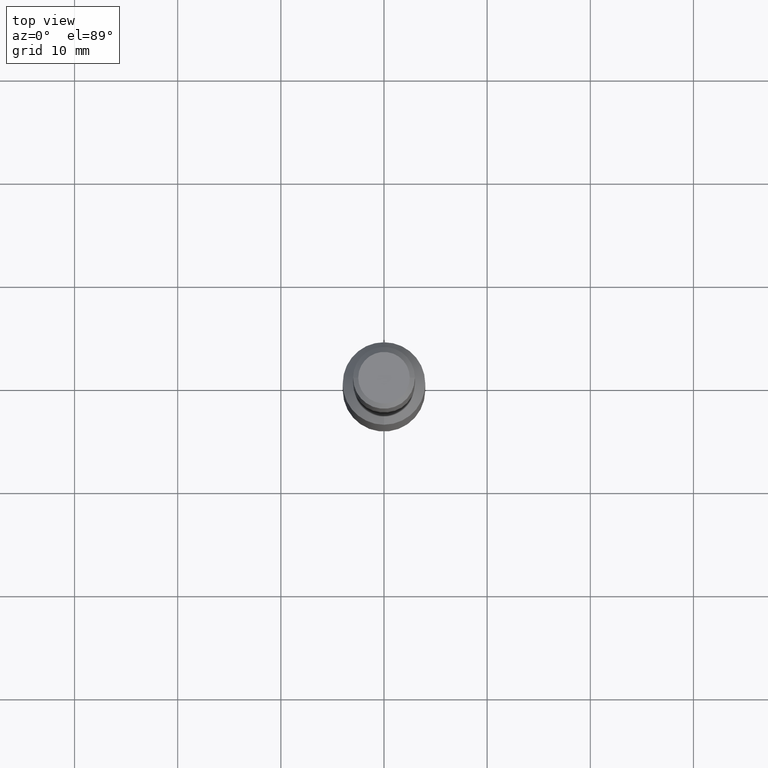
[diagram: clean part render]
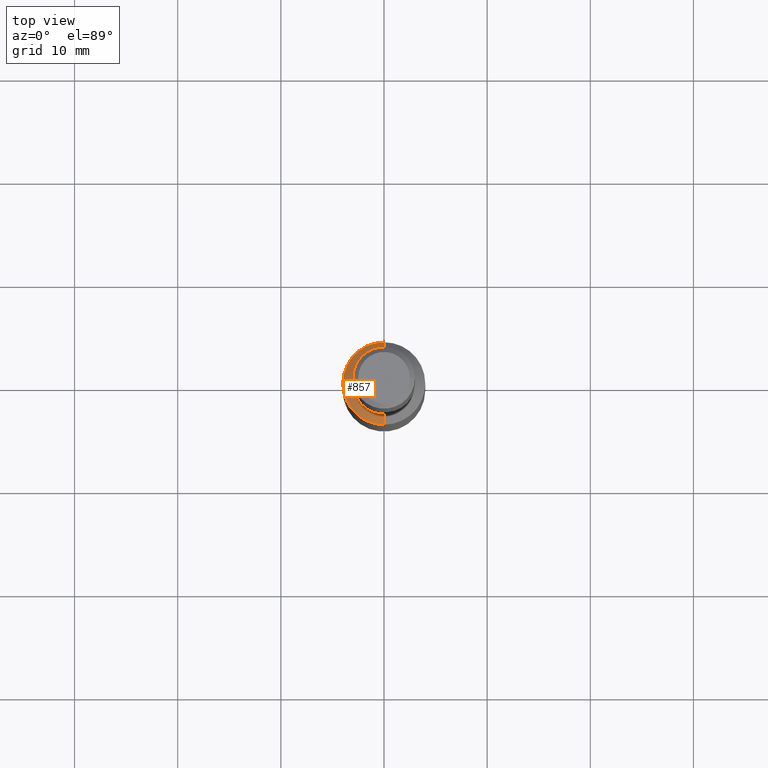
[diagram: same view with one face highlighted and labeled with its STEP entity id]
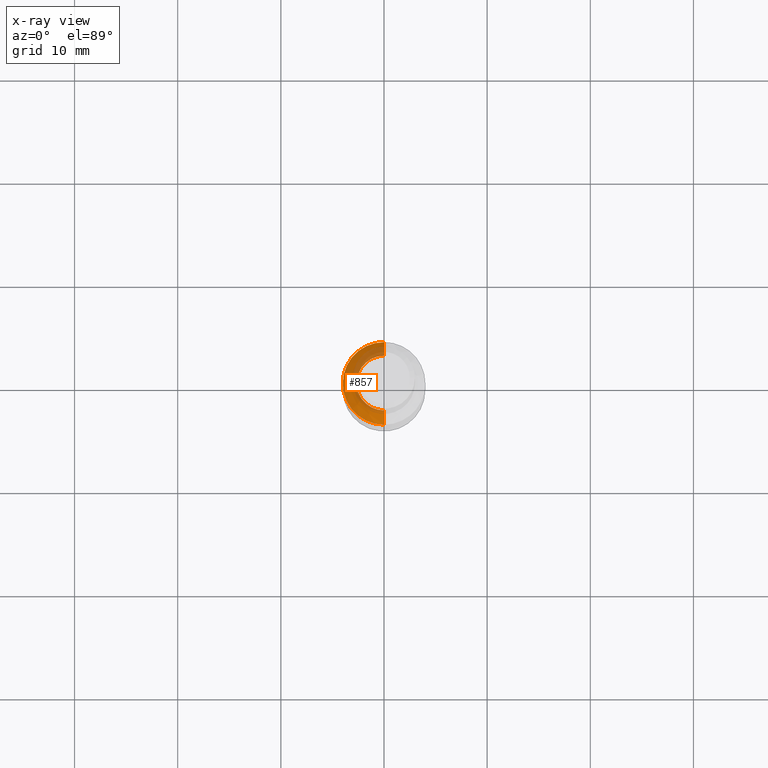
[diagram: x-ray of the same camera — body ghosted, the highlighted face saturated]
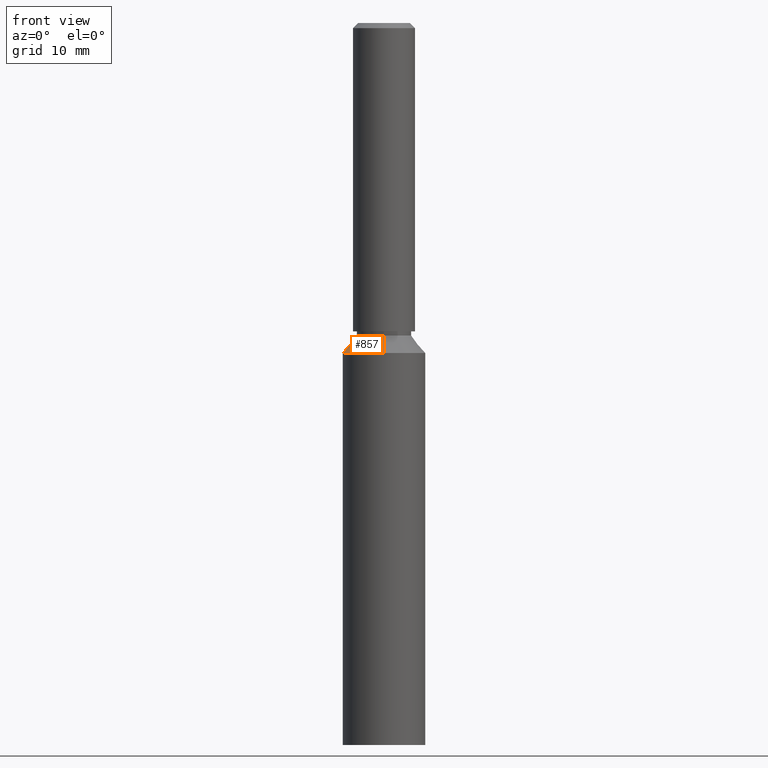
[diagram: same view with one face highlighted and labeled with its STEP entity id]
A machine part, top view. The second image highlights one B-rep face of the part: STEP entity #857.
The next image is the same camera in x-ray: the body ghosted, the highlighted face saturated — about 30% of this face is hidden behind the body in this view.
A second angle (front view) of the same face is appended — the face is thin or edge-on in the first view.
In plain terms, the highlighted conical surface has half-angle 38.454 deg.
Its self-contained STEP definition (entity closure, byte-faithful):
#81 = CARTESIAN_POINT ( 'NONE',  ( 0.0000000000000000000, -7.477419753763976000E-017, 38.00000000000000000 ) ) ;
#149 = ORIENTED_EDGE ( 'NONE', *, *, #8733, .T. ) ;
#857 = ADVANCED_FACE ( 'NONE', ( #13725 ), #9925, .T. ) ;
#956 = DIRECTION ( 'NONE',  ( -0.0000000000000000000, 1.967742040464204400E-018, -1.000000000000000000 ) ) ;
#1073 = VERTEX_POINT ( 'NONE', #10138 ) ;
#1693 = VERTEX_POINT ( 'NONE', #3882 ) ;
#1960 = VERTEX_POINT ( 'NONE', #12862 ) ;
#2070 = CARTESIAN_POINT ( 'NONE',  ( 0.0000000000000000000, -7.477419753763976000E-017, 38.00000000000000000 ) ) ;
#2234 = DIRECTION ( 'NONE',  ( 0.0000000000000000000, 1.000000000000000000, 0.0000000000000000000 ) ) ;
#2525 = ORIENTED_EDGE ( 'NONE', *, *, #12995, .F. ) ;
#2545 = VECTOR ( 'NONE', #7961, 1000.000000000000200 ) ;
#2790 = AXIS2_PLACEMENT_3D ( 'NONE', #4011, #956, #12605 ) ;
#3026 = CARTESIAN_POINT ( 'NONE',  ( -4.000000000000005300, 9.629649721936179300E-032, 38.00000000000000000 ) ) ;
#3247 = AXIS2_PLACEMENT_3D ( 'NONE', #2070, #4284, #10649 ) ;
#3264 = VECTOR ( 'NONE', #7355, 1000.000000000000200 ) ;
#3277 = CIRCLE ( 'NONE', #3247, 4.000000000000005300 ) ;
#3882 = CARTESIAN_POINT ( 'NONE',  ( 3.245314017740492400E-016, -2.650000000000005200, 39.70000000000000300 ) ) ;
#4011 = CARTESIAN_POINT ( 'NONE',  ( 0.0000000000000000000, -7.811935900642893000E-017, 39.70000000000000300 ) ) ;
#4284 = DIRECTION ( 'NONE',  ( -0.0000000000000000000, 1.967742040464204400E-018, -1.000000000000000000 ) ) ;
#4458 = ORIENTED_EDGE ( 'NONE', *, *, #5882, .F. ) ;
#4549 = AXIS2_PLACEMENT_3D ( 'NONE', #81, #13667, #2234 ) ;
#4831 = CARTESIAN_POINT ( 'NONE',  ( 0.0000000000000000000, -7.477419753763976000E-017, 38.00000000000000000 ) ) ;
#4862 = CARTESIAN_POINT ( 'NONE',  ( 4.898587196589419700E-016, -4.000000000000005300, 38.00000000000000000 ) ) ;
#5255 = VERTEX_POINT ( 'NONE', #3026 ) ;
#5403 = CIRCLE ( 'NONE', #2790, 2.650000000000005200 ) ;
#5690 = EDGE_CURVE ( 'NONE', #1693, #1960, #5403, .T. ) ;
#5882 = EDGE_CURVE ( 'NONE', #5255, #12210, #3277, .T. ) ;
#6547 = ORIENTED_EDGE ( 'NONE', *, *, #11624, .F. ) ;
#7355 = DIRECTION ( 'NONE',  ( 0.0000000000000000000, 0.6218821436015845600, -0.7831108474982950700 ) ) ;
#7795 = DIRECTION ( 'NONE',  ( -0.0000000000000000000, 1.967742040464204400E-018, -1.000000000000000000 ) ) ;
#7961 = DIRECTION ( 'NONE',  ( 7.615859766085753400E-017, -0.6218821436015845600, -0.7831108474982950700 ) ) ;
#8247 = AXIS2_PLACEMENT_3D ( 'NONE', #4831, #7795, #12236 ) ;
#8383 = ORIENTED_EDGE ( 'NONE', *, *, #5690, .T. ) ;
#8733 = EDGE_CURVE ( 'NONE', #1960, #12210, #12858, .T. ) ;
#9614 = LINE ( 'NONE', #4862, #2545 ) ;
#9663 = CIRCLE ( 'NONE', #8247, 4.000000000000005300 ) ;
#9925 = CONICAL_SURFACE ( 'NONE', #4549, 4.000000000000005300, 0.6711438354360067500 ) ;
#10138 = CARTESIAN_POINT ( 'NONE',  ( 4.898587196589419700E-016, -4.000000000000005300, 38.00000000000000000 ) ) ;
#10326 = EDGE_LOOP ( 'NONE', ( #2525, #8383, #149, #4458, #6547 ) ) ;
#10649 = DIRECTION ( 'NONE',  ( 0.0000000000000000000, 1.000000000000000000, 0.0000000000000000000 ) ) ;
#11454 = CARTESIAN_POINT ( 'NONE',  ( 0.0000000000000000000, 4.000000000000005300, 38.00000000000000000 ) ) ;
#11529 = CARTESIAN_POINT ( 'NONE',  ( 0.0000000000000000000, 4.000000000000005300, 38.00000000000000000 ) ) ;
#11624 = EDGE_CURVE ( 'NONE', #1073, #5255, #9663, .T. ) ;
#12210 = VERTEX_POINT ( 'NONE', #11454 ) ;
#12236 = DIRECTION ( 'NONE',  ( 0.0000000000000000000, 1.000000000000000000, 0.0000000000000000000 ) ) ;
#12605 = DIRECTION ( 'NONE',  ( 0.0000000000000000000, 1.000000000000000000, 0.0000000000000000000 ) ) ;
#12858 = LINE ( 'NONE', #11529, #3264 ) ;
#12862 = CARTESIAN_POINT ( 'NONE',  ( 0.0000000000000000000, 2.650000000000005200, 39.70000000000000300 ) ) ;
#12995 = EDGE_CURVE ( 'NONE', #1693, #1073, #9614, .T. ) ;
#13667 = DIRECTION ( 'NONE',  ( -0.0000000000000000000, 1.967742040464204400E-018, -1.000000000000000000 ) ) ;
#13725 = FACE_OUTER_BOUND ( 'NONE', #10326, .T. ) ;